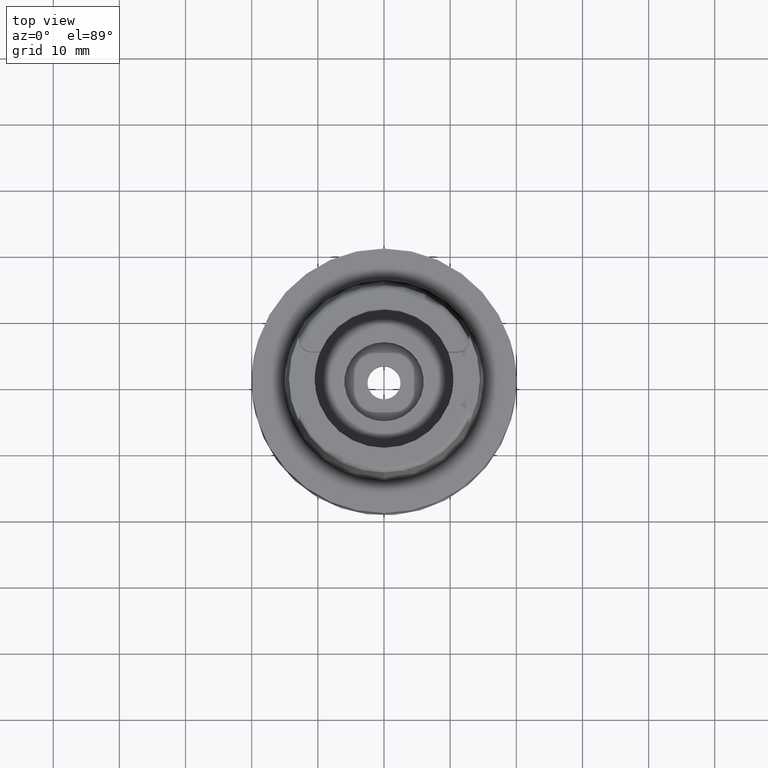
[diagram: clean part render]
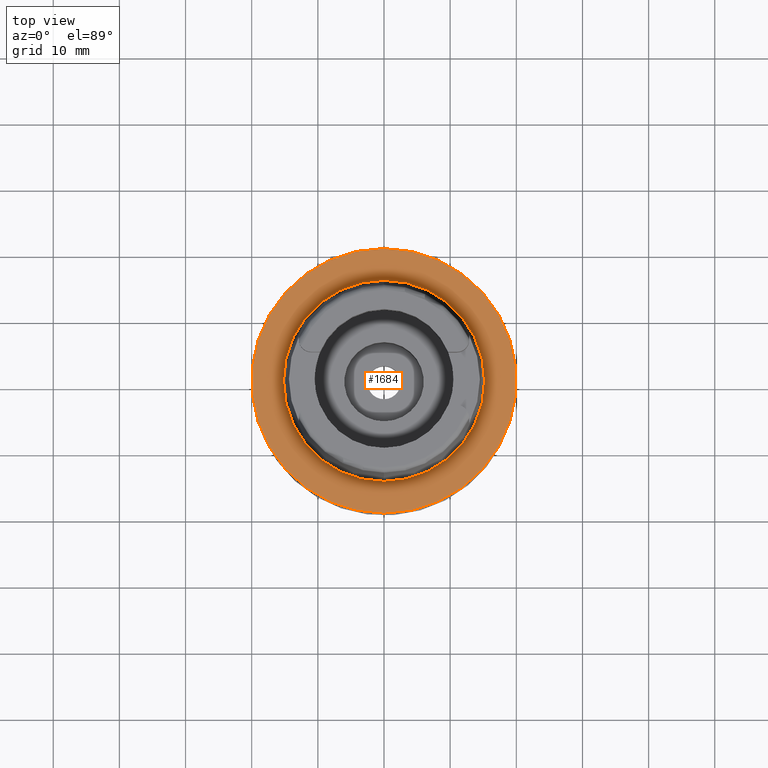
[diagram: same view with one face highlighted and labeled with its STEP entity id]
A machine part, top view. The second image highlights one B-rep face of the part: STEP entity #1684.
In plain terms, the highlighted planar face has unit normal (0, 0, -1).
Its self-contained STEP definition (entity closure, byte-faithful):
#336 = EDGE_LOOP ( 'NONE', ( #4694, #2840 ) ) ;
#337 = DIRECTION ( 'NONE',  ( 0.0000000000000000000, 0.0000000000000000000, -1.000000000000000000 ) ) ;
#634 = CIRCLE ( 'NONE', #3002, 15.20000663301000010 ) ;
#801 = CARTESIAN_POINT ( 'NONE',  ( 0.0000000000000000000, 15.20000663301000010, 5.684341886080998387E-14 ) ) ;
#987 = EDGE_CURVE ( 'NONE', #5327, #1841, #5053, .T. ) ;
#1193 = CARTESIAN_POINT ( 'NONE',  ( 0.0000000000000000000, 1.224646799146999965E-14, 0.0000000000000000000 ) ) ;
#1269 = DIRECTION ( 'NONE',  ( 0.0000000000000000000, 0.0000000000000000000, 1.000000000000000000 ) ) ;
#1291 = DIRECTION ( 'NONE',  ( 0.0000000000000000000, 0.0000000000000000000, -1.000000000000000000 ) ) ;
#1414 = AXIS2_PLACEMENT_3D ( 'NONE', #1193, #337, #1987 ) ;
#1684 = ADVANCED_FACE ( 'NONE', ( #4997, #4919 ), #2417, .F. ) ;
#1694 = AXIS2_PLACEMENT_3D ( 'NONE', #4894, #1269, #4067 ) ;
#1841 = VERTEX_POINT ( 'NONE', #4204 ) ;
#1987 = DIRECTION ( 'NONE',  ( 0.0000000000000000000, -1.000000000000000000, 0.0000000000000000000 ) ) ;
#2036 = ORIENTED_EDGE ( 'NONE', *, *, #2376, .F. ) ;
#2142 = CIRCLE ( 'NONE', #1694, 15.20000663301000010 ) ;
#2172 = ORIENTED_EDGE ( 'NONE', *, *, #987, .F. ) ;
#2376 = EDGE_CURVE ( 'NONE', #1841, #5327, #5017, .T. ) ;
#2417 = PLANE ( 'NONE',  #1414 ) ;
#2638 = AXIS2_PLACEMENT_3D ( 'NONE', #4935, #2887, #4574 ) ;
#2639 = CARTESIAN_POINT ( 'NONE',  ( 0.0000000000000000000, 1.523950476858999865E-14, -4.973799150320999175E-14 ) ) ;
#2840 = ORIENTED_EDGE ( 'NONE', *, *, #3668, .F. ) ;
#2887 = DIRECTION ( 'NONE',  ( 0.0000000000000000000, 0.0000000000000000000, -1.000000000000000000 ) ) ;
#3002 = AXIS2_PLACEMENT_3D ( 'NONE', #4237, #3042, #3879 ) ;
#3042 = DIRECTION ( 'NONE',  ( 0.0000000000000000000, 0.0000000000000000000, 1.000000000000000000 ) ) ;
#3117 = VERTEX_POINT ( 'NONE', #4560 ) ;
#3351 = EDGE_CURVE ( 'NONE', #4282, #3117, #634, .T. ) ;
#3668 = EDGE_CURVE ( 'NONE', #3117, #4282, #2142, .T. ) ;
#3834 = DIRECTION ( 'NONE',  ( 0.0000000000000000000, 1.000000000000000000, 0.0000000000000000000 ) ) ;
#3879 = DIRECTION ( 'NONE',  ( 0.0000000000000000000, 1.000000000000000000, 0.0000000000000000000 ) ) ;
#4067 = DIRECTION ( 'NONE',  ( 0.0000000000000000000, -1.000000000000000000, 0.0000000000000000000 ) ) ;
#4126 = CARTESIAN_POINT ( 'NONE',  ( 0.0000000000000000000, 20.00000000000000000, -3.079018521626999621E-14 ) ) ;
#4204 = CARTESIAN_POINT ( 'NONE',  ( 0.0000000000000000000, -20.00000000000000000, -4.973799150320999175E-14 ) ) ;
#4237 = CARTESIAN_POINT ( 'NONE',  ( 0.0000000000000000000, 1.342457523729000028E-14, 5.684341886080998387E-14 ) ) ;
#4282 = VERTEX_POINT ( 'NONE', #801 ) ;
#4527 = AXIS2_PLACEMENT_3D ( 'NONE', #2639, #1291, #3834 ) ;
#4560 = CARTESIAN_POINT ( 'NONE',  ( 0.0000000000000000000, -15.20000663301000010, 1.527666881883999820E-13 ) ) ;
#4574 = DIRECTION ( 'NONE',  ( 0.0000000000000000000, -1.000000000000000000, 0.0000000000000000000 ) ) ;
#4694 = ORIENTED_EDGE ( 'NONE', *, *, #3351, .F. ) ;
#4894 = CARTESIAN_POINT ( 'NONE',  ( 0.0000000000000000000, 1.342457523729000028E-14, 5.684341886080998387E-14 ) ) ;
#4919 = FACE_BOUND ( 'NONE', #336, .T. ) ;
#4935 = CARTESIAN_POINT ( 'NONE',  ( 0.0000000000000000000, 1.523950476858999865E-14, -4.973799150320999175E-14 ) ) ;
#4997 = FACE_OUTER_BOUND ( 'NONE', #5115, .T. ) ;
#5017 = CIRCLE ( 'NONE', #2638, 20.00000000000000000 ) ;
#5053 = CIRCLE ( 'NONE', #4527, 20.00000000000000000 ) ;
#5115 = EDGE_LOOP ( 'NONE', ( #2172, #2036 ) ) ;
#5327 = VERTEX_POINT ( 'NONE', #4126 ) ;